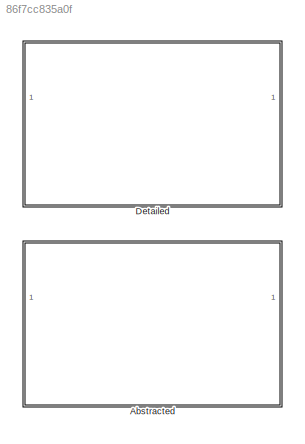
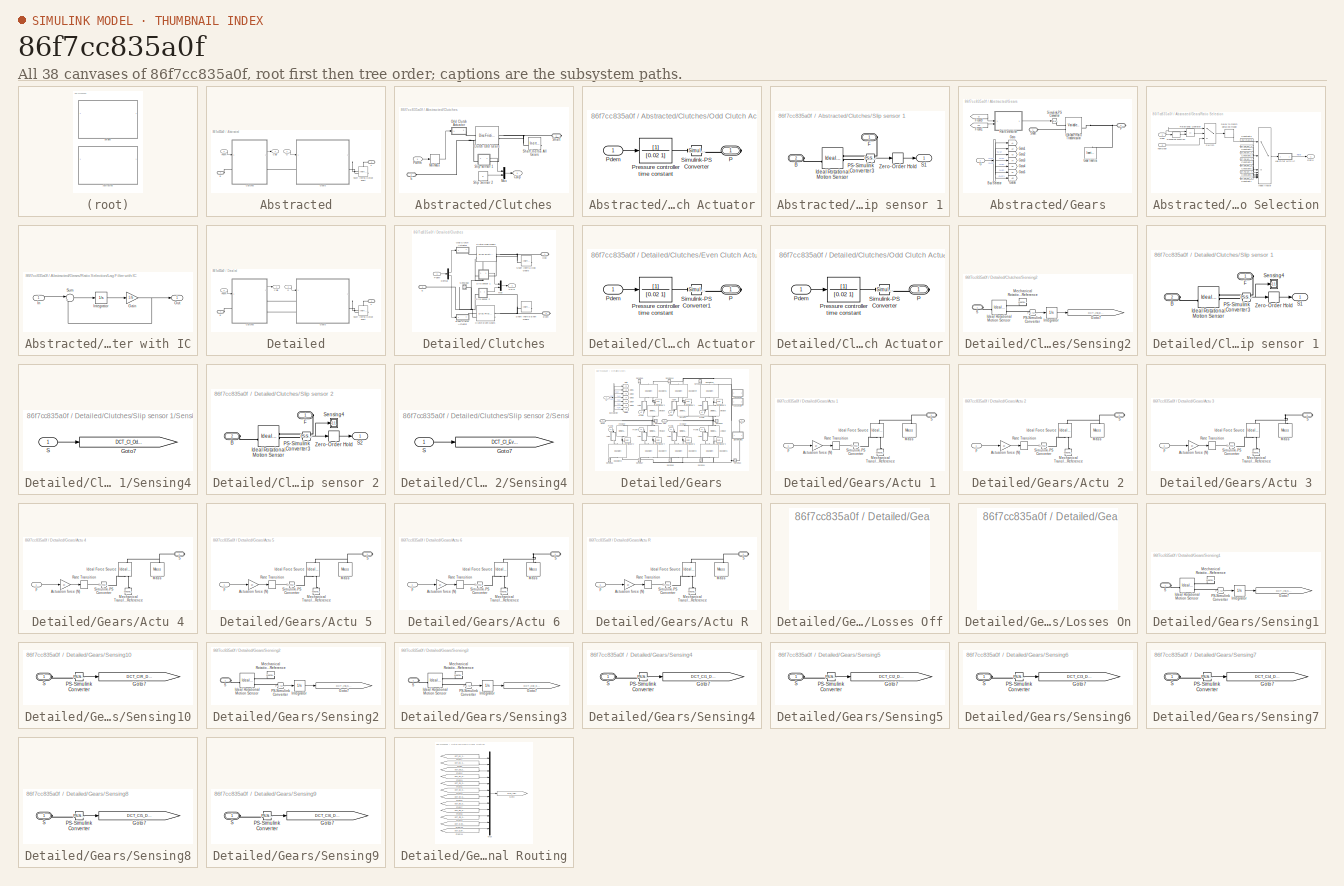
[diagram: thumbnail index - all 38 canvases of the model, root first then tree order]
MODEL slx_86f7cc835a0f
KIND library
CONFIG EnableMultiTasking = on
CONFIG SolverName = ode45
BLOCK [SubSystem] Abstracted
BLOCK [PMIOPort] Abstracted/B
  Side = Left
BLOCK [SubSystem] Abstracted/Clutches
BLOCK [Reference] Abstracted/Clutches/Clutch Odd Gears  REF=sdl_lib/Clutches/Disc Friction Clutch
  SourceBlock = sdl_lib/Clutches/Disc Friction Clutch
  SourceType = Disc Friction Clutch
BLOCK [Outport] Abstracted/Clutches/Cslip
  NameLocation = top
  VectorParamsAs1DForOutWhenUnconnected = off
BLOCK [PMIOPort] Abstracted/Clutches/E
  Port = 2
  Side = Left
BLOCK [MinMax] Abstracted/Clutches/MinMax
  Function = max
BLOCK [Mux] Abstracted/Clutches/Mux
  DisplayOption = bar
  Inputs = 2
BLOCK [SubSystem] Abstracted/Clutches/Odd Clutch Actuator
  NameLocation = top
BLOCK [PMIOPort] Abstracted/Clutches/Odd Clutch Actuator/P
  Side = Right
BLOCK [Inport] Abstracted/Clutches/Odd Clutch Actuator/Pdem
BLOCK [TransferFcn] Abstracted/Clutches/Odd Clutch Actuator/Pressure controller time constant
  Denominator = [0.02 1]
BLOCK [Reference] Abstracted/Clutches/Odd Clutch Actuator/Simulink-PS Converter  REF=nesl_utility/Simulink-PS
Converter
  SourceBlock = nesl_utility/Simulink-PS\nConverter
  SourceType = Simulink-PS\nConverter
BLOCK [Inport] Abstracted/Clutches/Pdem
BLOCK [PMIOPort] Abstracted/Clutches/Shaft
  Side = Right
BLOCK [Reference] Abstracted/Clutches/Shaft Inertia All Gears  REF=fl_lib/Mechanical/Rotational Elements/Inertia
  SourceBlock = fl_lib/Mechanical/Rotational Elements/Inertia
  SourceType = Inertia
BLOCK [Constant] Abstracted/Clutches/Slip Sensor 2
  Value = 0
BLOCK [SubSystem] Abstracted/Clutches/Slip sensor 1
BLOCK [PMIOPort] Abstracted/Clutches/Slip sensor 1/B
  Port = 2
  Side = Left
BLOCK [PMIOPort] Abstracted/Clutches/Slip sensor 1/F
  Side = Right
BLOCK [Reference] Abstracted/Clutches/Slip sensor 1/Ideal Rotational Motion Sensor  REF=fl_lib/Mechanical/Mechanical Sensors/Ideal Rotational
Motion Sensor
  SourceBlock = fl_lib/Mechanical/Mechanical Sensors/Ideal Rotational\nMotion Sensor
  SourceType = Ideal Rotational\nMotion Sensor
BLOCK [Reference] Abstracted/Clutches/Slip sensor 1/PS-Simulink Converter3  REF=nesl_utility/PS-Simulink
Converter
  SourceBlock = nesl_utility/PS-Simulink\nConverter
  SourceType = PS-Simulink\nConverter
BLOCK [Outport] Abstracted/Clutches/Slip sensor 1/S1
  VectorParamsAs1DForOutWhenUnconnected = off
BLOCK [ZeroOrderHold] Abstracted/Clutches/Slip sensor 1/Zero-Order Hold
  SampleTime = 0.01
BLOCK [Outport] Abstracted/Cslip
  VectorParamsAs1DForOutWhenUnconnected = off
BLOCK [PMIOPort] Abstracted/F
  Port = 2
  Side = Right
BLOCK [Inport] Abstracted/G
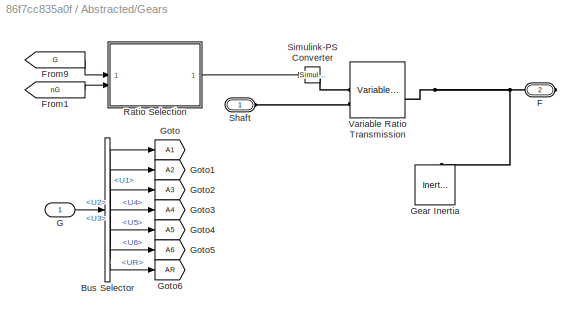
BLOCK [SubSystem] Abstracted/Gears
BLOCK [BusSelector] Abstracted/Gears/Bus Selector
  OutputSignals = U1,U2,U3,U4,U5,U6,UR
BLOCK [PMIOPort] Abstracted/Gears/F
  Port = 2
  Side = Right
BLOCK [From] Abstracted/Gears/From1
  GotoTag = nG
  TagVisibility = global
BLOCK [From] Abstracted/Gears/From9
  GotoTag = G
  TagVisibility = global
BLOCK [Inport] Abstracted/Gears/G
BLOCK [Reference] Abstracted/Gears/Gear Inertia  REF=fl_lib/Mechanical/Rotational Elements/Inertia
  NameLocation = left
  SourceBlock = fl_lib/Mechanical/Rotational Elements/Inertia
  SourceType = Inertia
BLOCK [Goto] Abstracted/Gears/Goto
  GotoTag = A1
BLOCK [Goto] Abstracted/Gears/Goto1
  GotoTag = A2
BLOCK [Goto] Abstracted/Gears/Goto2
  GotoTag = A3
BLOCK [Goto] Abstracted/Gears/Goto3
  GotoTag = A4
BLOCK [Goto] Abstracted/Gears/Goto4
  GotoTag = A5
BLOCK [Goto] Abstracted/Gears/Goto5
  GotoTag = A6
BLOCK [Goto] Abstracted/Gears/Goto6
  GotoTag = AR
BLOCK [SubSystem] Abstracted/Gears/Ratio Selection
BLOCK [Constant] Abstracted/Gears/Ratio Selection/Constant1
  Value = DCT_Param.Transmission.Ratios(1)
BLOCK [Constant] Abstracted/Gears/Ratio Selection/Constant2
  Value = DCT_Param.Transmission.Ratios(2)
BLOCK [Constant] Abstracted/Gears/Ratio Selection/Constant3
  Value = 1.05*(max(DCT_Param.Transmission.Ratios))
BLOCK [Constant] Abstracted/Gears/Ratio Selection/Constant4
  Value = DCT_Param.Transmission.Ratios(3)
BLOCK [Constant] Abstracted/Gears/Ratio Selection/Constant5
  Value = DCT_Param.Transmission.Ratios(4)
BLOCK [Constant] Abstracted/Gears/Ratio Selection/Constant6
  Value = DCT_Param.Transmission.Ratios(5)
BLOCK [Constant] Abstracted/Gears/Ratio Selection/Constant7
  Value = DCT_Param.Transmission.Ratios(6)
BLOCK [Delay] Abstracted/Gears/Ratio Selection/Delay to match detailed model
  DelayLength = DCT_Param.Transmission.Abstract.Shift_Gear_Delay
  InitialCondition = 1
  InputPortMap = u0
  SampleTime = 0.01
  UserDataPersistent = on
BLOCK [Inport] Abstracted/Gears/Ratio Selection/Gear
BLOCK [MultiPortSwitch] Abstracted/Gears/Ratio Selection/Index Vector
  DataPortOrder = Zero-based contiguous
  InputSameDT = off
  Inputs = 7
  SaturateOnIntegerOverflow = off
  zeroidx = on
BLOCK [SubSystem] Abstracted/Gears/Ratio Selection/Lag Filter with IC
BLOCK [Gain] Abstracted/Gears/Ratio Selection/Lag Filter with IC/Gain
  Gain = 1/b
BLOCK [Inport] Abstracted/Gears/Ratio Selection/Lag Filter with IC/In
BLOCK [Integrator] Abstracted/Gears/Ratio Selection/Lag Filter with IC/Integrator
  InitialCondition = x_initial*b
BLOCK [Outport] Abstracted/Gears/Ratio Selection/Lag Filter with IC/Out
  VectorParamsAs1DForOutWhenUnconnected = off
BLOCK [Sum] Abstracted/Gears/Ratio Selection/Lag Filter with IC/Sum
  InputSameDT = on
  Inputs = |+-
  OutDataTypeStr = Inherit: Same as first input
  SaturateOnIntegerOverflow = on
BLOCK [Outport] Abstracted/Gears/Ratio Selection/Ratio
  VectorParamsAs1DForOutWhenUnconnected = off
BLOCK [RelationalOperator] Abstracted/Gears/Ratio Selection/Relational Operator
  InputSameDT = off
  Operator = ==
  OutDataTypeStr = boolean
BLOCK [Rounding] Abstracted/Gears/Ratio Selection/Rounding Function
BLOCK [Switch] Abstracted/Gears/Ratio Selection/Switch
  Criteria = u2 > Threshold
  InputSameDT = off
  SaturateOnIntegerOverflow = off
BLOCK [Inport] Abstracted/Gears/Ratio Selection/nextGear
  Port = 2
BLOCK [PMIOPort] Abstracted/Gears/Shaft
  Side = Left
BLOCK [Reference] Abstracted/Gears/Simulink-PS Converter  REF=nesl_utility/Simulink-PS
Converter
  SourceBlock = nesl_utility/Simulink-PS\nConverter
  SourceType = Simulink-PS\nConverter
BLOCK [Reference] Abstracted/Gears/Variable Ratio Transmission  REF=sdl_lib/Couplings & Drives/Variable Ratio
Transmission
  SourceBlock = sdl_lib/Couplings & Drives/Variable Ratio\nTransmission
  SourceType = Variable Ratio\nTransmission
BLOCK [Inport] Abstracted/Pdem
  Port = 2
BLOCK [Reference] Abstracted/Shaft Inertia Output Shaft  REF=fl_lib/Mechanical/Rotational Elements/Inertia
  SourceBlock = fl_lib/Mechanical/Rotational Elements/Inertia
  SourceType = Inertia
BLOCK [SubSystem] Detailed
BLOCK [PMIOPort] Detailed/B
  Side = Left
BLOCK [SubSystem] Detailed/Clutches
BLOCK [Reference] Detailed/Clutches/Clutch Even Gears  REF=sdl_lib/Clutches/Disc Friction Clutch
  SourceBlock = sdl_lib/Clutches/Disc Friction Clutch
  SourceType = Disc Friction Clutch
  Tag = CustomStyle
BLOCK [Reference] Detailed/Clutches/Clutch Odd Gears  REF=sdl_lib/Clutches/Disc Friction Clutch
  SourceBlock = sdl_lib/Clutches/Disc Friction Clutch
  SourceType = Disc Friction Clutch
  Tag = CustomStyle
BLOCK [Outport] Detailed/Clutches/Cslip
  NameLocation = top
  VectorParamsAs1DForOutWhenUnconnected = off
BLOCK [Demux] Detailed/Clutches/Demux
  Outputs = 2
BLOCK [PMIOPort] Detailed/Clutches/E
  Port = 2
  Side = Left
BLOCK [PMIOPort] Detailed/Clutches/Even
  NameLocation = top
  Port = 3
  Side = Right
BLOCK [SubSystem] Detailed/Clutches/Even Clutch Actuator
BLOCK [PMIOPort] Detailed/Clutches/Even Clutch Actuator/P
  Side = Right
BLOCK [Inport] Detailed/Clutches/Even Clutch Actuator/Pdem
BLOCK [TransferFcn] Detailed/Clutches/Even Clutch Actuator/Pressure controller time constant
  Denominator = [0.02 1]
BLOCK [Reference] Detailed/Clutches/Even Clutch Actuator/Simulink-PS Converter1  REF=nesl_utility/Simulink-PS
Converter
  SourceBlock = nesl_utility/Simulink-PS\nConverter
  SourceType = Simulink-PS\nConverter
BLOCK [Mux] Detailed/Clutches/Mux
  DisplayOption = bar
  Inputs = 2
BLOCK [PMIOPort] Detailed/Clutches/Odd
  Side = Right
BLOCK [SubSystem] Detailed/Clutches/Odd Clutch Actuator
  NameLocation = top
BLOCK [PMIOPort] Detailed/Clutches/Odd Clutch Actuator/P
  Side = Right
BLOCK [Inport] Detailed/Clutches/Odd Clutch Actuator/Pdem
BLOCK [TransferFcn] Detailed/Clutches/Odd Clutch Actuator/Pressure controller time constant
  Denominator = [0.02 1]
BLOCK [Reference] Detailed/Clutches/Odd Clutch Actuator/Simulink-PS Converter  REF=nesl_utility/Simulink-PS
Converter
  SourceBlock = nesl_utility/Simulink-PS\nConverter
  SourceType = Simulink-PS\nConverter
BLOCK [Inport] Detailed/Clutches/Pdem
BLOCK [SubSystem] Detailed/Clutches/Sensing2
BLOCK [Goto] Detailed/Clutches/Sensing2/Goto7
  GotoTag = DCT_Inp_Engine_Sh_Ang
  TagVisibility = global
BLOCK [Reference] Detailed/Clutches/Sensing2/Ideal Rotational Motion Sensor  REF=fl_lib/Mechanical/Mechanical Sensors/Ideal Rotational
Motion Sensor
  SourceBlock = fl_lib/Mechanical/Mechanical Sensors/Ideal Rotational\nMotion Sensor
  SourceType = Ideal Rotational\nMotion Sensor
BLOCK [Integrator] Detailed/Clutches/Sensing2/Integrator
BLOCK [Reference] Detailed/Clutches/Sensing2/Mechanical Rotational Reference  REF=fl_lib/Mechanical/Rotational Elements/Mechanical
Rotational Reference
  NameLocation = top
  SourceBlock = fl_lib/Mechanical/Rotational Elements/Mechanical\nRotational Reference
  SourceType = Mechanical\nRotational Reference
BLOCK [Reference] Detailed/Clutches/Sensing2/PS-Simulink Converter  REF=nesl_utility/PS-Simulink
Converter
  SourceBlock = nesl_utility/PS-Simulink\nConverter
  SourceType = PS-Simulink\nConverter
BLOCK [PMIOPort] Detailed/Clutches/Sensing2/S
  Side = Left
BLOCK [Reference] Detailed/Clutches/Shaft Inertia Even Gears  REF=fl_lib/Mechanical/Rotational Elements/Inertia
  NameLocation = top
  SourceBlock = fl_lib/Mechanical/Rotational Elements/Inertia
  SourceType = Inertia
BLOCK [Reference] Detailed/Clutches/Shaft Inertia Odd Gears  REF=fl_lib/Mechanical/Rotational Elements/Inertia
  SourceBlock = fl_lib/Mechanical/Rotational Elements/Inertia
  SourceType = Inertia
BLOCK [SubSystem] Detailed/Clutches/Slip sensor 1
BLOCK [PMIOPort] Detailed/Clutches/Slip sensor 1/B
  Port = 2
  Side = Left
BLOCK [PMIOPort] Detailed/Clutches/Slip sensor 1/F
  Side = Right
BLOCK [Reference] Detailed/Clutches/Slip sensor 1/Ideal Rotational Motion Sensor  REF=fl_lib/Mechanical/Mechanical Sensors/Ideal Rotational
Motion Sensor
  SourceBlock = fl_lib/Mechanical/Mechanical Sensors/Ideal Rotational\nMotion Sensor
  SourceType = Ideal Rotational\nMotion Sensor
BLOCK [Reference] Detailed/Clutches/Slip sensor 1/PS-Simulink Converter3  REF=nesl_utility/PS-Simulink
Converter
  SourceBlock = nesl_utility/PS-Simulink\nConverter
  SourceType = PS-Simulink\nConverter
BLOCK [Outport] Detailed/Clutches/Slip sensor 1/S1
  VectorParamsAs1DForOutWhenUnconnected = off
BLOCK [SubSystem] Detailed/Clutches/Slip sensor 1/Sensing4
BLOCK [Goto] Detailed/Clutches/Slip sensor 1/Sensing4/Goto7
  GotoTag = DCT_Cl_Odd_Slip
  TagVisibility = global
BLOCK [Inport] Detailed/Clutches/Slip sensor 1/Sensing4/S
BLOCK [ZeroOrderHold] Detailed/Clutches/Slip sensor 1/Zero-Order Hold
  SampleTime = 0.01
BLOCK [SubSystem] Detailed/Clutches/Slip sensor 2
BLOCK [PMIOPort] Detailed/Clutches/Slip sensor 2/B
  Port = 2
  Side = Left
BLOCK [PMIOPort] Detailed/Clutches/Slip sensor 2/F
  Side = Right
BLOCK [Reference] Detailed/Clutches/Slip sensor 2/Ideal Rotational Motion Sensor  REF=fl_lib/Mechanical/Mechanical Sensors/Ideal Rotational
Motion Sensor
  SourceBlock = fl_lib/Mechanical/Mechanical Sensors/Ideal Rotational\nMotion Sensor
  SourceType = Ideal Rotational\nMotion Sensor
BLOCK [Reference] Detailed/Clutches/Slip sensor 2/PS-Simulink Converter3  REF=nesl_utility/PS-Simulink
Converter
  SourceBlock = nesl_utility/PS-Simulink\nConverter
  SourceType = PS-Simulink\nConverter
BLOCK [Outport] Detailed/Clutches/Slip sensor 2/S2
  VectorParamsAs1DForOutWhenUnconnected = off
BLOCK [SubSystem] Detailed/Clutches/Slip sensor 2/Sensing4
BLOCK [Goto] Detailed/Clutches/Slip sensor 2/Sensing4/Goto7
  GotoTag = DCT_Cl_Even_Slip
  TagVisibility = global
BLOCK [Inport] Detailed/Clutches/Slip sensor 2/Sensing4/S
BLOCK [ZeroOrderHold] Detailed/Clutches/Slip sensor 2/Zero-Order Hold
  SampleTime = 0.01
BLOCK [Outport] Detailed/Cslip
  VectorParamsAs1DForOutWhenUnconnected = off
BLOCK [PMIOPort] Detailed/F
  Port = 2
  Side = Right
BLOCK [Inport] Detailed/G
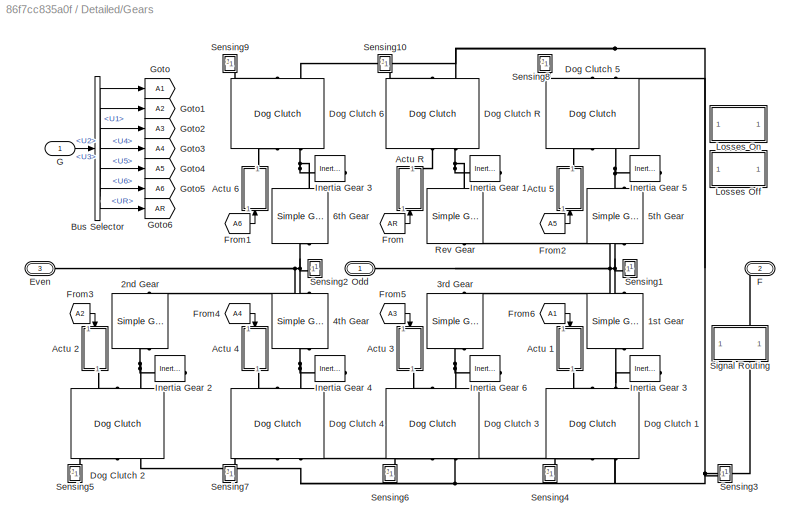
BLOCK [SubSystem] Detailed/Gears
BLOCK [Reference] Detailed/Gears/1st Gear  REF=sdl_lib/Gears/Simple Gear
  NameLocation = right
  SourceBlock = sdl_lib/Gears/Simple Gear
  SourceType = Simple Gear
  Tag = CustomStyle
BLOCK [Reference] Detailed/Gears/2nd Gear  REF=sdl_lib/Gears/Simple Gear
  NameLocation = right
  SourceBlock = sdl_lib/Gears/Simple Gear
  SourceType = Simple Gear
  Tag = CustomStyle
BLOCK [Reference] Detailed/Gears/3rd Gear  REF=sdl_lib/Gears/Simple Gear
  NameLocation = right
  SourceBlock = sdl_lib/Gears/Simple Gear
  SourceType = Simple Gear
  Tag = CustomStyle
BLOCK [Reference] Detailed/Gears/4th Gear  REF=sdl_lib/Gears/Simple Gear
  NameLocation = right
  SourceBlock = sdl_lib/Gears/Simple Gear
  SourceType = Simple Gear
  Tag = CustomStyle
BLOCK [Reference] Detailed/Gears/5th Gear  REF=sdl_lib/Gears/Simple Gear
  NameLocation = right
  SourceBlock = sdl_lib/Gears/Simple Gear
  SourceType = Simple Gear
  Tag = CustomStyle
BLOCK [Reference] Detailed/Gears/6th Gear  REF=sdl_lib/Gears/Simple Gear
  NameLocation = right
  SourceBlock = sdl_lib/Gears/Simple Gear
  SourceType = Simple Gear
  Tag = CustomStyle
BLOCK [SubSystem] Detailed/Gears/Actu 1
  NameLocation = left
BLOCK [Gain] Detailed/Gears/Actu 1/Actuation force (N)
  Gain = 10
  OutDataTypeStr = Inherit: Same as input
  ParamDataTypeStr = Inherit: Same as input
  SaturateOnIntegerOverflow = on
BLOCK [Reference] Detailed/Gears/Actu 1/Ideal Force Source  REF=fl_lib/Mechanical/Mechanical Sources/Ideal Force Source
  NameLocation = right
  SourceBlock = fl_lib/Mechanical/Mechanical Sources/Ideal Force Source
  SourceType = Ideal Force Source
BLOCK [Reference] Detailed/Gears/Actu 1/Mass  REF=fl_lib/Mechanical/Translational
Elements/Mass
  NameLocation = right
  SourceBlock = fl_lib/Mechanical/Translational\nElements/Mass
  SourceType = Mass
BLOCK [Reference] Detailed/Gears/Actu 1/Mechanical Translational Reference  REF=fl_lib/Mechanical/Translational
Elements/Mechanical
Translational
Reference
  NameLocation = right
  SourceBlock = fl_lib/Mechanical/Translational\nElements/Mechanical\nTranslational\nReference
  SourceType = Mechanical\nTranslational\nReference
BLOCK [RateTransition] Detailed/Gears/Actu 1/Rate Transition
BLOCK [PMIOPort] Detailed/Gears/Actu 1/S
  Side = Right
BLOCK [Reference] Detailed/Gears/Actu 1/Simulink-PS Converter  REF=nesl_utility/Simulink-PS
Converter
  SourceBlock = nesl_utility/Simulink-PS\nConverter
  SourceType = Simulink-PS\nConverter
BLOCK [Inport] Detailed/Gears/Actu 1/p
BLOCK [SubSystem] Detailed/Gears/Actu 2
  NameLocation = left
BLOCK [Gain] Detailed/Gears/Actu 2/Actuation force (N)
  Gain = 10
  OutDataTypeStr = Inherit: Same as input
  ParamDataTypeStr = Inherit: Same as input
  SaturateOnIntegerOverflow = on
BLOCK [Reference] Detailed/Gears/Actu 2/Ideal Force Source  REF=fl_lib/Mechanical/Mechanical Sources/Ideal Force Source
  NameLocation = right
  SourceBlock = fl_lib/Mechanical/Mechanical Sources/Ideal Force Source
  SourceType = Ideal Force Source
BLOCK [Reference] Detailed/Gears/Actu 2/Mass  REF=fl_lib/Mechanical/Translational
Elements/Mass
  NameLocation = right
  SourceBlock = fl_lib/Mechanical/Translational\nElements/Mass
  SourceType = Mass
BLOCK [Reference] Detailed/Gears/Actu 2/Mechanical Translational Reference  REF=fl_lib/Mechanical/Translational
Elements/Mechanical
Translational
Reference
  NameLocation = right
  SourceBlock = fl_lib/Mechanical/Translational\nElements/Mechanical\nTranslational\nReference
  SourceType = Mechanical\nTranslational\nReference
BLOCK [RateTransition] Detailed/Gears/Actu 2/Rate Transition
BLOCK [PMIOPort] Detailed/Gears/Actu 2/S
  Side = Right
BLOCK [Reference] Detailed/Gears/Actu 2/Simulink-PS Converter  REF=nesl_utility/Simulink-PS
Converter
  SourceBlock = nesl_utility/Simulink-PS\nConverter
  SourceType = Simulink-PS\nConverter
BLOCK [Inport] Detailed/Gears/Actu 2/p
BLOCK [SubSystem] Detailed/Gears/Actu 3
  NameLocation = left
BLOCK [Gain] Detailed/Gears/Actu 3/Actuation force (N)
  Gain = 10
  OutDataTypeStr = Inherit: Same as input
  ParamDataTypeStr = Inherit: Same as input
  SaturateOnIntegerOverflow = on
BLOCK [Reference] Detailed/Gears/Actu 3/Ideal Force Source  REF=fl_lib/Mechanical/Mechanical Sources/Ideal Force Source
  NameLocation = right
  SourceBlock = fl_lib/Mechanical/Mechanical Sources/Ideal Force Source
  SourceType = Ideal Force Source
BLOCK [Reference] Detailed/Gears/Actu 3/Mass  REF=fl_lib/Mechanical/Translational
Elements/Mass
  NameLocation = right
  SourceBlock = fl_lib/Mechanical/Translational\nElements/Mass
  SourceType = Mass
BLOCK [Reference] Detailed/Gears/Actu 3/Mechanical Translational Reference  REF=fl_lib/Mechanical/Translational
Elements/Mechanical
Translational
Reference
  NameLocation = right
  SourceBlock = fl_lib/Mechanical/Translational\nElements/Mechanical\nTranslational\nReference
  SourceType = Mechanical\nTranslational\nReference
BLOCK [RateTransition] Detailed/Gears/Actu 3/Rate Transition
BLOCK [PMIOPort] Detailed/Gears/Actu 3/S
  Side = Right
BLOCK [Reference] Detailed/Gears/Actu 3/Simulink-PS Converter  REF=nesl_utility/Simulink-PS
Converter
  SourceBlock = nesl_utility/Simulink-PS\nConverter
  SourceType = Simulink-PS\nConverter
BLOCK [Inport] Detailed/Gears/Actu 3/p
BLOCK [SubSystem] Detailed/Gears/Actu 4
  NameLocation = left
BLOCK [Gain] Detailed/Gears/Actu 4/Actuation force (N)
  Gain = 10
  OutDataTypeStr = Inherit: Same as input
  ParamDataTypeStr = Inherit: Same as input
  SaturateOnIntegerOverflow = on
BLOCK [Reference] Detailed/Gears/Actu 4/Ideal Force Source  REF=fl_lib/Mechanical/Mechanical Sources/Ideal Force Source
  NameLocation = right
  SourceBlock = fl_lib/Mechanical/Mechanical Sources/Ideal Force Source
  SourceType = Ideal Force Source
BLOCK [Reference] Detailed/Gears/Actu 4/Mass  REF=fl_lib/Mechanical/Translational
Elements/Mass
  NameLocation = right
  SourceBlock = fl_lib/Mechanical/Translational\nElements/Mass
  SourceType = Mass
BLOCK [Reference] Detailed/Gears/Actu 4/Mechanical Translational Reference  REF=fl_lib/Mechanical/Translational
Elements/Mechanical
Translational
Reference
  NameLocation = right
  SourceBlock = fl_lib/Mechanical/Translational\nElements/Mechanical\nTranslational\nReference
  SourceType = Mechanical\nTranslational\nReference
BLOCK [RateTransition] Detailed/Gears/Actu 4/Rate Transition
BLOCK [PMIOPort] Detailed/Gears/Actu 4/S
  Side = Right
BLOCK [Reference] Detailed/Gears/Actu 4/Simulink-PS Converter  REF=nesl_utility/Simulink-PS
Converter
  SourceBlock = nesl_utility/Simulink-PS\nConverter
  SourceType = Simulink-PS\nConverter
BLOCK [Inport] Detailed/Gears/Actu 4/p
BLOCK [SubSystem] Detailed/Gears/Actu 5
  NameLocation = left
BLOCK [Gain] Detailed/Gears/Actu 5/Actuation force (N)
  Gain = 10
  OutDataTypeStr = Inherit: Same as input
  ParamDataTypeStr = Inherit: Same as input
  SaturateOnIntegerOverflow = on
BLOCK [Reference] Detailed/Gears/Actu 5/Ideal Force Source  REF=fl_lib/Mechanical/Mechanical Sources/Ideal Force Source
  NameLocation = right
  SourceBlock = fl_lib/Mechanical/Mechanical Sources/Ideal Force Source
  SourceType = Ideal Force Source
BLOCK [Reference] Detailed/Gears/Actu 5/Mass  REF=fl_lib/Mechanical/Translational
Elements/Mass
  NameLocation = right
  SourceBlock = fl_lib/Mechanical/Translational\nElements/Mass
  SourceType = Mass
BLOCK [Reference] Detailed/Gears/Actu 5/Mechanical Translational Reference  REF=fl_lib/Mechanical/Translational
Elements/Mechanical
Translational
Reference
  NameLocation = right
  SourceBlock = fl_lib/Mechanical/Translational\nElements/Mechanical\nTranslational\nReference
  SourceType = Mechanical\nTranslational\nReference
BLOCK [RateTransition] Detailed/Gears/Actu 5/Rate Transition
BLOCK [PMIOPort] Detailed/Gears/Actu 5/S
  Side = Right
BLOCK [Reference] Detailed/Gears/Actu 5/Simulink-PS Converter  REF=nesl_utility/Simulink-PS
Converter
  SourceBlock = nesl_utility/Simulink-PS\nConverter
  SourceType = Simulink-PS\nConverter
BLOCK [Inport] Detailed/Gears/Actu 5/p
BLOCK [SubSystem] Detailed/Gears/Actu 6
  NameLocation = left
BLOCK [Gain] Detailed/Gears/Actu 6/Actuation force (N)
  Gain = 10
  OutDataTypeStr = Inherit: Same as input
  ParamDataTypeStr = Inherit: Same as input
  SaturateOnIntegerOverflow = on
BLOCK [Reference] Detailed/Gears/Actu 6/Ideal Force Source  REF=fl_lib/Mechanical/Mechanical Sources/Ideal Force Source
  NameLocation = right
  SourceBlock = fl_lib/Mechanical/Mechanical Sources/Ideal Force Source
  SourceType = Ideal Force Source
BLOCK [Reference] Detailed/Gears/Actu 6/Mass  REF=fl_lib/Mechanical/Translational
Elements/Mass
  NameLocation = right
  SourceBlock = fl_lib/Mechanical/Translational\nElements/Mass
  SourceType = Mass
BLOCK [Reference] Detailed/Gears/Actu 6/Mechanical Translational Reference  REF=fl_lib/Mechanical/Translational
Elements/Mechanical
Translational
Reference
  NameLocation = right
  SourceBlock = fl_lib/Mechanical/Translational\nElements/Mechanical\nTranslational\nReference
  SourceType = Mechanical\nTranslational\nReference
BLOCK [RateTransition] Detailed/Gears/Actu 6/Rate Transition
BLOCK [PMIOPort] Detailed/Gears/Actu 6/S
  Side = Right
BLOCK [Reference] Detailed/Gears/Actu 6/Simulink-PS Converter  REF=nesl_utility/Simulink-PS
Converter
  SourceBlock = nesl_utility/Simulink-PS\nConverter
  SourceType = Simulink-PS\nConverter
BLOCK [Inport] Detailed/Gears/Actu 6/p
BLOCK [SubSystem] Detailed/Gears/Actu R
  NameLocation = left
BLOCK [Gain] Detailed/Gears/Actu R/Actuation force (N)
  Gain = 10
  OutDataTypeStr = Inherit: Same as input
  ParamDataTypeStr = Inherit: Same as input
  SaturateOnIntegerOverflow = on
BLOCK [Reference] Detailed/Gears/Actu R/Ideal Force Source  REF=fl_lib/Mechanical/Mechanical Sources/Ideal Force Source
  NameLocation = right
  SourceBlock = fl_lib/Mechanical/Mechanical Sources/Ideal Force Source
  SourceType = Ideal Force Source
BLOCK [Reference] Detailed/Gears/Actu R/Mass  REF=fl_lib/Mechanical/Translational
Elements/Mass
  NameLocation = right
  SourceBlock = fl_lib/Mechanical/Translational\nElements/Mass
  SourceType = Mass
BLOCK [Reference] Detailed/Gears/Actu R/Mechanical Translational Reference  REF=fl_lib/Mechanical/Translational
Elements/Mechanical
Translational
Reference
  NameLocation = right
  SourceBlock = fl_lib/Mechanical/Translational\nElements/Mechanical\nTranslational\nReference
  SourceType = Mechanical\nTranslational\nReference
BLOCK [RateTransition] Detailed/Gears/Actu R/Rate Transition
BLOCK [PMIOPort] Detailed/Gears/Actu R/S
  Side = Right
BLOCK [Reference] Detailed/Gears/Actu R/Simulink-PS Converter  REF=nesl_utility/Simulink-PS
Converter
  SourceBlock = nesl_utility/Simulink-PS\nConverter
  SourceType = Simulink-PS\nConverter
BLOCK [Inport] Detailed/Gears/Actu R/p
BLOCK [BusSelector] Detailed/Gears/Bus Selector
  OutputSignals = U1,U2,U3,U4,U5,U6,UR
BLOCK [Reference] Detailed/Gears/Dog Clutch 1  REF=sdl_lib/Clutches/Dog Clutch
  NameLocation = right
  SourceBlock = sdl_lib/Clutches/Dog Clutch
  SourceType = Dog Clutch
  Tag = CustomStyle
BLOCK [Reference] Detailed/Gears/Dog Clutch 2  REF=sdl_lib/Clutches/Dog Clutch
  NameLocation = right
  SourceBlock = sdl_lib/Clutches/Dog Clutch
  SourceType = Dog Clutch
  Tag = CustomStyle
BLOCK [Reference] Detailed/Gears/Dog Clutch 3  REF=sdl_lib/Clutches/Dog Clutch
  NameLocation = right
  SourceBlock = sdl_lib/Clutches/Dog Clutch
  SourceType = Dog Clutch
  Tag = CustomStyle
BLOCK [Reference] Detailed/Gears/Dog Clutch 4  REF=sdl_lib/Clutches/Dog Clutch
  NameLocation = right
  SourceBlock = sdl_lib/Clutches/Dog Clutch
  SourceType = Dog Clutch
  Tag = CustomStyle
BLOCK [Reference] Detailed/Gears/Dog Clutch 5  REF=sdl_lib/Clutches/Dog Clutch
  NameLocation = right
  SourceBlock = sdl_lib/Clutches/Dog Clutch
  SourceType = Dog Clutch
  Tag = CustomStyle
BLOCK [Reference] Detailed/Gears/Dog Clutch 6  REF=sdl_lib/Clutches/Dog Clutch
  NameLocation = right
  SourceBlock = sdl_lib/Clutches/Dog Clutch
  SourceType = Dog Clutch
  Tag = CustomStyle
BLOCK [Reference] Detailed/Gears/Dog Clutch R  REF=sdl_lib/Clutches/Dog Clutch
  NameLocation = right
  SourceBlock = sdl_lib/Clutches/Dog Clutch
  SourceType = Dog Clutch
  Tag = CustomStyle
BLOCK [PMIOPort] Detailed/Gears/Even
  Port = 3
  Side = Left
BLOCK [PMIOPort] Detailed/Gears/F
  Port = 2
  Side = Right
BLOCK [From] Detailed/Gears/From
  GotoTag = AR
BLOCK [From] Detailed/Gears/From1
  GotoTag = A6
BLOCK [From] Detailed/Gears/From2
  GotoTag = A5
BLOCK [From] Detailed/Gears/From3
  GotoTag = A2
BLOCK [From] Detailed/Gears/From4
  GotoTag = A4
BLOCK [From] Detailed/Gears/From5
  GotoTag = A3
BLOCK [From] Detailed/Gears/From6
  GotoTag = A1
BLOCK [Inport] Detailed/Gears/G
BLOCK [Goto] Detailed/Gears/Goto
  GotoTag = A1
BLOCK [Goto] Detailed/Gears/Goto1
  GotoTag = A2
BLOCK [Goto] Detailed/Gears/Goto2
  GotoTag = A3
BLOCK [Goto] Detailed/Gears/Goto3
  GotoTag = A4
BLOCK [Goto] Detailed/Gears/Goto4
  GotoTag = A5
BLOCK [Goto] Detailed/Gears/Goto5
  GotoTag = A6
BLOCK [Goto] Detailed/Gears/Goto6
  GotoTag = AR
BLOCK [Reference] Detailed/Gears/Inertia Gear 1  REF=fl_lib/Mechanical/Rotational Elements/Inertia
  SourceBlock = fl_lib/Mechanical/Rotational Elements/Inertia
  SourceType = Inertia
BLOCK [Reference] Detailed/Gears/Inertia Gear 2  REF=fl_lib/Mechanical/Rotational Elements/Inertia
  SourceBlock = fl_lib/Mechanical/Rotational Elements/Inertia
  SourceType = Inertia
BLOCK [Reference] Detailed/Gears/Inertia Gear 3  REF=fl_lib/Mechanical/Rotational Elements/Inertia
  SourceBlock = fl_lib/Mechanical/Rotational Elements/Inertia
  SourceType = Inertia
BLOCK [Reference] Detailed/Gears/Inertia Gear 3   REF=fl_lib/Mechanical/Rotational Elements/Inertia
  SourceBlock = fl_lib/Mechanical/Rotational Elements/Inertia
  SourceType = Inertia
BLOCK [Reference] Detailed/Gears/Inertia Gear 4  REF=fl_lib/Mechanical/Rotational Elements/Inertia
  SourceBlock = fl_lib/Mechanical/Rotational Elements/Inertia
  SourceType = Inertia
BLOCK [Reference] Detailed/Gears/Inertia Gear 5  REF=fl_lib/Mechanical/Rotational Elements/Inertia
  SourceBlock = fl_lib/Mechanical/Rotational Elements/Inertia
  SourceType = Inertia
BLOCK [Reference] Detailed/Gears/Inertia Gear 6  REF=fl_lib/Mechanical/Rotational Elements/Inertia
  SourceBlock = fl_lib/Mechanical/Rotational Elements/Inertia
  SourceType = Inertia
BLOCK [SubSystem] Detailed/Gears/Losses Off
  OpenFcn = gearblk_h = find_system(gcs,'MatchFilter',@Simulink.match.allVariants,'ClassName','simple_gear');\nfor i = 1:length(gearblk_h)                            \nset_param(gearblk_h{i},'friction_model','1'); end
BLOCK [SubSystem] Detailed/Gears/Losses On
  OpenFcn = gearblk_h = find_system(gcs,'MatchFilter',@Simulink.match.allVariants,'ClassName','simple_gear');\nfor i = 1:length(gearblk_h)                            \nset_param(gearblk_h{i},'friction_model','2'); end;
BLOCK [PMIOPort] Detailed/Gears/Odd
  Side = Left
BLOCK [Reference] Detailed/Gears/Rev Gear  REF=sdl_lib/Gears/Simple Gear
  NameLocation = right
  SourceBlock = sdl_lib/Gears/Simple Gear
  SourceType = Simple Gear
  Tag = CustomStyle
BLOCK [SubSystem] Detailed/Gears/Sensing1
BLOCK [Goto] Detailed/Gears/Sensing1/Goto7
  GotoTag = DCT_Inp_Sh_Odd_Ang
  TagVisibility = global
BLOCK [Reference] Detailed/Gears/Sensing1/Ideal Rotational Motion Sensor  REF=fl_lib/Mechanical/Mechanical Sensors/Ideal Rotational
Motion Sensor
  SourceBlock = fl_lib/Mechanical/Mechanical Sensors/Ideal Rotational\nMotion Sensor
  SourceType = Ideal Rotational\nMotion Sensor
BLOCK [Integrator] Detailed/Gears/Sensing1/Integrator
BLOCK [Reference] Detailed/Gears/Sensing1/Mechanical Rotational Reference  REF=fl_lib/Mechanical/Rotational Elements/Mechanical
Rotational Reference
  NameLocation = top
  SourceBlock = fl_lib/Mechanical/Rotational Elements/Mechanical\nRotational Reference
  SourceType = Mechanical\nRotational Reference
BLOCK [Reference] Detailed/Gears/Sensing1/PS-Simulink Converter  REF=nesl_utility/PS-Simulink
Converter
  SourceBlock = nesl_utility/PS-Simulink\nConverter
  SourceType = PS-Simulink\nConverter
BLOCK [PMIOPort] Detailed/Gears/Sensing1/S
  Side = Left
BLOCK [SubSystem] Detailed/Gears/Sensing10
  NameLocation = top
BLOCK [Goto] Detailed/Gears/Sensing10/Goto7
  GotoTag = DCT_ClR_Disp
  TagVisibility = global
BLOCK [Reference] Detailed/Gears/Sensing10/PS-Simulink Converter  REF=nesl_utility/PS-Simulink
Converter
  SourceBlock = nesl_utility/PS-Simulink\nConverter
  SourceType = PS-Simulink\nConverter
BLOCK [PMIOPort] Detailed/Gears/Sensing10/S
  Side = Left
BLOCK [SubSystem] Detailed/Gears/Sensing2
BLOCK [Goto] Detailed/Gears/Sensing2/Goto7
  GotoTag = DCT_Inp_Sh_Even_Ang
  TagVisibility = global
BLOCK [Reference] Detailed/Gears/Sensing2/Ideal Rotational Motion Sensor  REF=fl_lib/Mechanical/Mechanical Sensors/Ideal Rotational
Motion Sensor
  SourceBlock = fl_lib/Mechanical/Mechanical Sensors/Ideal Rotational\nMotion Sensor
  SourceType = Ideal Rotational\nMotion Sensor
BLOCK [Integrator] Detailed/Gears/Sensing2/Integrator
BLOCK [Reference] Detailed/Gears/Sensing2/Mechanical Rotational Reference  REF=fl_lib/Mechanical/Rotational Elements/Mechanical
Rotational Reference
  NameLocation = top
  SourceBlock = fl_lib/Mechanical/Rotational Elements/Mechanical\nRotational Reference
  SourceType = Mechanical\nRotational Reference
BLOCK [Reference] Detailed/Gears/Sensing2/PS-Simulink Converter  REF=nesl_utility/PS-Simulink
Converter
  SourceBlock = nesl_utility/PS-Simulink\nConverter
  SourceType = PS-Simulink\nConverter
BLOCK [PMIOPort] Detailed/Gears/Sensing2/S
  Side = Left
BLOCK [SubSystem] Detailed/Gears/Sensing3
BLOCK [Goto] Detailed/Gears/Sensing3/Goto7
  GotoTag = DCT_Out_Sh_Even_Ang
  TagVisibility = global
BLOCK [Reference] Detailed/Gears/Sensing3/Ideal Rotational Motion Sensor  REF=fl_lib/Mechanical/Mechanical Sensors/Ideal Rotational
Motion Sensor
  SourceBlock = fl_lib/Mechanical/Mechanical Sensors/Ideal Rotational\nMotion Sensor
  SourceType = Ideal Rotational\nMotion Sensor
BLOCK [Integrator] Detailed/Gears/Sensing3/Integrator
BLOCK [Reference] Detailed/Gears/Sensing3/Mechanical Rotational Reference  REF=fl_lib/Mechanical/Rotational Elements/Mechanical
Rotational Reference
  NameLocation = top
  SourceBlock = fl_lib/Mechanical/Rotational Elements/Mechanical\nRotational Reference
  SourceType = Mechanical\nRotational Reference
BLOCK [Reference] Detailed/Gears/Sensing3/PS-Simulink Converter  REF=nesl_utility/PS-Simulink
Converter
  SourceBlock = nesl_utility/PS-Simulink\nConverter
  SourceType = PS-Simulink\nConverter
BLOCK [PMIOPort] Detailed/Gears/Sensing3/S
  Side = Left
BLOCK [SubSystem] Detailed/Gears/Sensing4
  NameLocation = top
BLOCK [Goto] Detailed/Gears/Sensing4/Goto7
  GotoTag = DCT_Cl1_Disp
  TagVisibility = global
BLOCK [Reference] Detailed/Gears/Sensing4/PS-Simulink Converter  REF=nesl_utility/PS-Simulink
Converter
  SourceBlock = nesl_utility/PS-Simulink\nConverter
  SourceType = PS-Simulink\nConverter
BLOCK [PMIOPort] Detailed/Gears/Sensing4/S
  Side = Left
BLOCK [SubSystem] Detailed/Gears/Sensing5
  NameLocation = top
BLOCK [Goto] Detailed/Gears/Sensing5/Goto7
  GotoTag = DCT_Cl2_Disp
  TagVisibility = global
BLOCK [Reference] Detailed/Gears/Sensing5/PS-Simulink Converter  REF=nesl_utility/PS-Simulink
Converter
  SourceBlock = nesl_utility/PS-Simulink\nConverter
  SourceType = PS-Simulink\nConverter
BLOCK [PMIOPort] Detailed/Gears/Sensing5/S
  Side = Left
BLOCK [SubSystem] Detailed/Gears/Sensing6
  NameLocation = top
BLOCK [Goto] Detailed/Gears/Sensing6/Goto7
  GotoTag = DCT_Cl3_Disp
  TagVisibility = global
BLOCK [Reference] Detailed/Gears/Sensing6/PS-Simulink Converter  REF=nesl_utility/PS-Simulink
Converter
  SourceBlock = nesl_utility/PS-Simulink\nConverter
  SourceType = PS-Simulink\nConverter
BLOCK [PMIOPort] Detailed/Gears/Sensing6/S
  Side = Left
BLOCK [SubSystem] Detailed/Gears/Sensing7
  NameLocation = top
BLOCK [Goto] Detailed/Gears/Sensing7/Goto7
  GotoTag = DCT_Cl4_Disp
  TagVisibility = global
BLOCK [Reference] Detailed/Gears/Sensing7/PS-Simulink Converter  REF=nesl_utility/PS-Simulink
Converter
  SourceBlock = nesl_utility/PS-Simulink\nConverter
  SourceType = PS-Simulink\nConverter
BLOCK [PMIOPort] Detailed/Gears/Sensing7/S
  Side = Left
BLOCK [SubSystem] Detailed/Gears/Sensing8
  NameLocation = top
BLOCK [Goto] Detailed/Gears/Sensing8/Goto7
  GotoTag = DCT_Cl5_Disp
  TagVisibility = global
BLOCK [Reference] Detailed/Gears/Sensing8/PS-Simulink Converter  REF=nesl_utility/PS-Simulink
Converter
  SourceBlock = nesl_utility/PS-Simulink\nConverter
  SourceType = PS-Simulink\nConverter
BLOCK [PMIOPort] Detailed/Gears/Sensing8/S
  Side = Left
BLOCK [SubSystem] Detailed/Gears/Sensing9
  NameLocation = top
BLOCK [Goto] Detailed/Gears/Sensing9/Goto7
  GotoTag = DCT_Cl6_Disp
  TagVisibility = global
BLOCK [Reference] Detailed/Gears/Sensing9/PS-Simulink Converter  REF=nesl_utility/PS-Simulink
Converter
  SourceBlock = nesl_utility/PS-Simulink\nConverter
  SourceType = PS-Simulink\nConverter
BLOCK [PMIOPort] Detailed/Gears/Sensing9/S
  Side = Left
BLOCK [SubSystem] Detailed/Gears/Signal Routing
BLOCK [From] Detailed/Gears/Signal Routing/From
  GotoTag = DCT_Inp_Sh_Even_Ang
  TagVisibility = global
BLOCK [From] Detailed/Gears/Signal Routing/From1
  GotoTag = DCT_Inp_Sh_Odd_Ang
  TagVisibility = global
BLOCK [From] Detailed/Gears/Signal Routing/From10
  GotoTag = DCT_Cl_Odd_Slip
  TagVisibility = global
BLOCK [From] Detailed/Gears/Signal Routing/From11
  GotoTag = DCT_Cl_Even_Slip
  TagVisibility = global
BLOCK [From] Detailed/Gears/Signal Routing/From2
  GotoTag = DCT_Out_Sh_Even_Ang
  TagVisibility = global
BLOCK [From] Detailed/Gears/Signal Routing/From3
  GotoTag = DCT_Cl1_Disp
  TagVisibility = global
BLOCK [From] Detailed/Gears/Signal Routing/From4
  GotoTag = DCT_Cl2_Disp
  TagVisibility = global
BLOCK [From] Detailed/Gears/Signal Routing/From5
  GotoTag = DCT_Cl3_Disp
  TagVisibility = global
BLOCK [From] Detailed/Gears/Signal Routing/From6
  GotoTag = DCT_Cl4_Disp
  TagVisibility = global
BLOCK [From] Detailed/Gears/Signal Routing/From7
  GotoTag = DCT_Cl5_Disp
  TagVisibility = global
BLOCK [From] Detailed/Gears/Signal Routing/From8
  GotoTag = DCT_Cl6_Disp
  TagVisibility = global
BLOCK [From] Detailed/Gears/Signal Routing/From9
  GotoTag = DCT_ClR_Disp
  TagVisibility = global
BLOCK [Goto] Detailed/Gears/Signal Routing/Goto
  GotoTag = SL3D_Anim_Data
  TagVisibility = global
BLOCK [Mux] Detailed/Gears/Signal Routing/Mux
  DisplayOption = bar
  Inputs = 12
BLOCK [Inport] Detailed/Pdem
  Port = 2
BLOCK [Reference] Detailed/Shaft Inertia Output Shaft  REF=fl_lib/Mechanical/Rotational Elements/Inertia
  SourceBlock = fl_lib/Mechanical/Rotational Elements/Inertia
  SourceType = Inertia
LINE Abstracted/Clutches/MinMax:1 -> Abstracted/Clutches/Odd Clutch Actuator:1
LINE Abstracted/Clutches/Mux:1 -> Abstracted/Clutches/Cslip:1
LINE Abstracted/Clutches/Odd Clutch Actuator/Pdem:1 -> Abstracted/Clutches/Odd Clutch Actuator/Pressure controller time constant:1
LINE Abstracted/Clutches/Odd Clutch Actuator/Pressure controller time constant:1 -> Abstracted/Clutches/Odd Clutch Actuator/Simulink-PS Converter:1
LINE Abstracted/Clutches/Pdem:1 -> Abstracted/Clutches/MinMax:1
LINE Abstracted/Clutches/Slip Sensor 2:1 -> Abstracted/Clutches/Mux:2
LINE Abstracted/Clutches/Slip sensor 1/PS-Simulink Converter3:1 -> Abstracted/Clutches/Slip sensor 1/Zero-Order Hold:1
LINE Abstracted/Clutches/Slip sensor 1/Zero-Order Hold:1 -> Abstracted/Clutches/Slip sensor 1/S1:1
LINE Abstracted/Clutches/Slip sensor 1:1 -> Abstracted/Clutches/Mux:1
LINE Abstracted/Clutches:1 -> Abstracted/Cslip:1
LINE Abstracted/G:1 -> Abstracted/Gears:1
LINE Abstracted/Gears/Bus Selector:1 -> Abstracted/Gears/Goto:1
LINE Abstracted/Gears/Bus Selector:2 -> Abstracted/Gears/Goto1:1
LINE Abstracted/Gears/Bus Selector:3 -> Abstracted/Gears/Goto2:1
LINE Abstracted/Gears/Bus Selector:4 -> Abstracted/Gears/Goto3:1
LINE Abstracted/Gears/Bus Selector:5 -> Abstracted/Gears/Goto4:1
LINE Abstracted/Gears/Bus Selector:6 -> Abstracted/Gears/Goto5:1
LINE Abstracted/Gears/Bus Selector:7 -> Abstracted/Gears/Goto6:1
LINE Abstracted/Gears/From1:1 -> Abstracted/Gears/Ratio Selection:2
LINE Abstracted/Gears/From9:1 -> Abstracted/Gears/Ratio Selection:1
LINE Abstracted/Gears/G:1 -> Abstracted/Gears/Bus Selector:1
LINE Abstracted/Gears/Ratio Selection/Constant1:1 -> Abstracted/Gears/Ratio Selection/Index Vector:3
LINE Abstracted/Gears/Ratio Selection/Constant2:1 -> Abstracted/Gears/Ratio Selection/Index Vector:4
LINE Abstracted/Gears/Ratio Selection/Constant3:1 -> Abstracted/Gears/Ratio Selection/Index Vector:2
LINE Abstracted/Gears/Ratio Selection/Constant4:1 -> Abstracted/Gears/Ratio Selection/Index Vector:5
LINE Abstracted/Gears/Ratio Selection/Constant5:1 -> Abstracted/Gears/Ratio Selection/Index Vector:6
LINE Abstracted/Gears/Ratio Selection/Constant6:1 -> Abstracted/Gears/Ratio Selection/Index Vector:7
LINE Abstracted/Gears/Ratio Selection/Constant7:1 -> Abstracted/Gears/Ratio Selection/Index Vector:8
LINE Abstracted/Gears/Ratio Selection/Delay to match detailed model:1 -> Abstracted/Gears/Ratio Selection/Index Vector:1
NET Abstracted/Gears/Ratio Selection/Gear:1 -> Abstracted/Gears/Ratio Selection/Relational Operator:1, Abstracted/Gears/Ratio Selection/Rounding Function:1, Abstracted/Gears/Ratio Selection/Switch:1
LINE Abstracted/Gears/Ratio Selection/Index Vector:1 -> Abstracted/Gears/Ratio Selection/Lag Filter with IC:1
NET Abstracted/Gears/Ratio Selection/Lag Filter with IC/Gain:1 -> Abstracted/Gears/Ratio Selection/Lag Filter with IC/Out:1, Abstracted/Gears/Ratio Selection/Lag Filter with IC/Sum:2
LINE Abstracted/Gears/Ratio Selection/Lag Filter with IC/In:1 -> Abstracted/Gears/Ratio Selection/Lag Filter with IC/Sum:1
LINE Abstracted/Gears/Ratio Selection/Lag Filter with IC/Integrator:1 -> Abstracted/Gears/Ratio Selection/Lag Filter with IC/Gain:1
LINE Abstracted/Gears/Ratio Selection/Lag Filter with IC/Sum:1 -> Abstracted/Gears/Ratio Selection/Lag Filter with IC/Integrator:1
LINE Abstracted/Gears/Ratio Selection/Lag Filter with IC:1 -> Abstracted/Gears/Ratio Selection/Ratio:1
LINE Abstracted/Gears/Ratio Selection/Relational Operator:1 -> Abstracted/Gears/Ratio Selection/Switch:2
LINE Abstracted/Gears/Ratio Selection/Rounding Function:1 -> Abstracted/Gears/Ratio Selection/Relational Operator:2
LINE Abstracted/Gears/Ratio Selection/Switch:1 -> Abstracted/Gears/Ratio Selection/Delay to match detailed model:1
LINE Abstracted/Gears/Ratio Selection/nextGear:1 -> Abstracted/Gears/Ratio Selection/Switch:3
LINE Abstracted/Gears/Ratio Selection:1 -> Abstracted/Gears/Simulink-PS Converter:1
LINE Abstracted/Pdem:1 -> Abstracted/Clutches:1
LINE Detailed/Clutches/Demux:1 -> Detailed/Clutches/Odd Clutch Actuator:1
LINE Detailed/Clutches/Demux:2 -> Detailed/Clutches/Even Clutch Actuator:1
LINE Detailed/Clutches/Even Clutch Actuator/Pdem:1 -> Detailed/Clutches/Even Clutch Actuator/Pressure controller time constant:1
LINE Detailed/Clutches/Even Clutch Actuator/Pressure controller time constant:1 -> Detailed/Clutches/Even Clutch Actuator/Simulink-PS Converter1:1
LINE Detailed/Clutches/Mux:1 -> Detailed/Clutches/Cslip:1
LINE Detailed/Clutches/Odd Clutch Actuator/Pdem:1 -> Detailed/Clutches/Odd Clutch Actuator/Pressure controller time constant:1
LINE Detailed/Clutches/Odd Clutch Actuator/Pressure controller time constant:1 -> Detailed/Clutches/Odd Clutch Actuator/Simulink-PS Converter:1
LINE Detailed/Clutches/Pdem:1 -> Detailed/Clutches/Demux:1
LINE Detailed/Clutches/Sensing2/Integrator:1 -> Detailed/Clutches/Sensing2/Goto7:1
LINE Detailed/Clutches/Sensing2/PS-Simulink Converter:1 -> Detailed/Clutches/Sensing2/Integrator:1
NET Detailed/Clutches/Slip sensor 1/PS-Simulink Converter3:1 -> Detailed/Clutches/Slip sensor 1/Sensing4:1, Detailed/Clutches/Slip sensor 1/Zero-Order Hold:1
LINE Detailed/Clutches/Slip sensor 1/Sensing4/S:1 -> Detailed/Clutches/Slip sensor 1/Sensing4/Goto7:1
LINE Detailed/Clutches/Slip sensor 1/Zero-Order Hold:1 -> Detailed/Clutches/Slip sensor 1/S1:1
LINE Detailed/Clutches/Slip sensor 1:1 -> Detailed/Clutches/Mux:1
NET Detailed/Clutches/Slip sensor 2/PS-Simulink Converter3:1 -> Detailed/Clutches/Slip sensor 2/Sensing4:1, Detailed/Clutches/Slip sensor 2/Zero-Order Hold:1
LINE Detailed/Clutches/Slip sensor 2/Sensing4/S:1 -> Detailed/Clutches/Slip sensor 2/Sensing4/Goto7:1
LINE Detailed/Clutches/Slip sensor 2/Zero-Order Hold:1 -> Detailed/Clutches/Slip sensor 2/S2:1
LINE Detailed/Clutches/Slip sensor 2:1 -> Detailed/Clutches/Mux:2
LINE Detailed/Clutches:1 -> Detailed/Cslip:1
LINE Detailed/G:1 -> Detailed/Gears:1
LINE Detailed/Gears/Actu 1/Actuation force (N):1 -> Detailed/Gears/Actu 1/Rate Transition:1
LINE Detailed/Gears/Actu 1/Rate Transition:1 -> Detailed/Gears/Actu 1/Simulink-PS Converter:1
LINE Detailed/Gears/Actu 1/p:1 -> Detailed/Gears/Actu 1/Actuation force (N):1
LINE Detailed/Gears/Actu 2/Actuation force (N):1 -> Detailed/Gears/Actu 2/Rate Transition:1
LINE Detailed/Gears/Actu 2/Rate Transition:1 -> Detailed/Gears/Actu 2/Simulink-PS Converter:1
LINE Detailed/Gears/Actu 2/p:1 -> Detailed/Gears/Actu 2/Actuation force (N):1
LINE Detailed/Gears/Actu 3/Actuation force (N):1 -> Detailed/Gears/Actu 3/Rate Transition:1
LINE Detailed/Gears/Actu 3/Rate Transition:1 -> Detailed/Gears/Actu 3/Simulink-PS Converter:1
LINE Detailed/Gears/Actu 3/p:1 -> Detailed/Gears/Actu 3/Actuation force (N):1
LINE Detailed/Gears/Actu 4/Actuation force (N):1 -> Detailed/Gears/Actu 4/Rate Transition:1
LINE Detailed/Gears/Actu 4/Rate Transition:1 -> Detailed/Gears/Actu 4/Simulink-PS Converter:1
LINE Detailed/Gears/Actu 4/p:1 -> Detailed/Gears/Actu 4/Actuation force (N):1
LINE Detailed/Gears/Actu 5/Actuation force (N):1 -> Detailed/Gears/Actu 5/Rate Transition:1
LINE Detailed/Gears/Actu 5/Rate Transition:1 -> Detailed/Gears/Actu 5/Simulink-PS Converter:1
LINE Detailed/Gears/Actu 5/p:1 -> Detailed/Gears/Actu 5/Actuation force (N):1
LINE Detailed/Gears/Actu 6/Actuation force (N):1 -> Detailed/Gears/Actu 6/Rate Transition:1
LINE Detailed/Gears/Actu 6/Rate Transition:1 -> Detailed/Gears/Actu 6/Simulink-PS Converter:1
LINE Detailed/Gears/Actu 6/p:1 -> Detailed/Gears/Actu 6/Actuation force (N):1
LINE Detailed/Gears/Actu R/Actuation force (N):1 -> Detailed/Gears/Actu R/Rate Transition:1
LINE Detailed/Gears/Actu R/Rate Transition:1 -> Detailed/Gears/Actu R/Simulink-PS Converter:1
LINE Detailed/Gears/Actu R/p:1 -> Detailed/Gears/Actu R/Actuation force (N):1
LINE Detailed/Gears/Bus Selector:1 -> Detailed/Gears/Goto:1
LINE Detailed/Gears/Bus Selector:2 -> Detailed/Gears/Goto1:1
LINE Detailed/Gears/Bus Selector:3 -> Detailed/Gears/Goto2:1
LINE Detailed/Gears/Bus Selector:4 -> Detailed/Gears/Goto3:1
LINE Detailed/Gears/Bus Selector:5 -> Detailed/Gears/Goto4:1
LINE Detailed/Gears/Bus Selector:6 -> Detailed/Gears/Goto5:1
LINE Detailed/Gears/Bus Selector:7 -> Detailed/Gears/Goto6:1
LINE Detailed/Gears/From1:1 -> Detailed/Gears/Actu 6:1
LINE Detailed/Gears/From2:1 -> Detailed/Gears/Actu 5:1
LINE Detailed/Gears/From3:1 -> Detailed/Gears/Actu 2:1
LINE Detailed/Gears/From4:1 -> Detailed/Gears/Actu 4:1
LINE Detailed/Gears/From5:1 -> Detailed/Gears/Actu 3:1
LINE Detailed/Gears/From6:1 -> Detailed/Gears/Actu 1:1
LINE Detailed/Gears/From:1 -> Detailed/Gears/Actu R:1
LINE Detailed/Gears/G:1 -> Detailed/Gears/Bus Selector:1
LINE Detailed/Gears/Sensing1/Integrator:1 -> Detailed/Gears/Sensing1/Goto7:1
LINE Detailed/Gears/Sensing1/PS-Simulink Converter:1 -> Detailed/Gears/Sensing1/Integrator:1
LINE Detailed/Gears/Sensing10/PS-Simulink Converter:1 -> Detailed/Gears/Sensing10/Goto7:1
LINE Detailed/Gears/Sensing2/Integrator:1 -> Detailed/Gears/Sensing2/Goto7:1
LINE Detailed/Gears/Sensing2/PS-Simulink Converter:1 -> Detailed/Gears/Sensing2/Integrator:1
LINE Detailed/Gears/Sensing3/Integrator:1 -> Detailed/Gears/Sensing3/Goto7:1
LINE Detailed/Gears/Sensing3/PS-Simulink Converter:1 -> Detailed/Gears/Sensing3/Integrator:1
LINE Detailed/Gears/Sensing4/PS-Simulink Converter:1 -> Detailed/Gears/Sensing4/Goto7:1
LINE Detailed/Gears/Sensing5/PS-Simulink Converter:1 -> Detailed/Gears/Sensing5/Goto7:1
LINE Detailed/Gears/Sensing6/PS-Simulink Converter:1 -> Detailed/Gears/Sensing6/Goto7:1
LINE Detailed/Gears/Sensing7/PS-Simulink Converter:1 -> Detailed/Gears/Sensing7/Goto7:1
LINE Detailed/Gears/Sensing8/PS-Simulink Converter:1 -> Detailed/Gears/Sensing8/Goto7:1
LINE Detailed/Gears/Sensing9/PS-Simulink Converter:1 -> Detailed/Gears/Sensing9/Goto7:1
LINE Detailed/Gears/Signal Routing/From10:1 -> Detailed/Gears/Signal Routing/Mux:11
LINE Detailed/Gears/Signal Routing/From11:1 -> Detailed/Gears/Signal Routing/Mux:12
LINE Detailed/Gears/Signal Routing/From1:1 -> Detailed/Gears/Signal Routing/Mux:1
LINE Detailed/Gears/Signal Routing/From2:1 -> Detailed/Gears/Signal Routing/Mux:3
LINE Detailed/Gears/Signal Routing/From3:1 -> Detailed/Gears/Signal Routing/Mux:4
LINE Detailed/Gears/Signal Routing/From4:1 -> Detailed/Gears/Signal Routing/Mux:6
LINE Detailed/Gears/Signal Routing/From5:1 -> Detailed/Gears/Signal Routing/Mux:5
LINE Detailed/Gears/Signal Routing/From6:1 -> Detailed/Gears/Signal Routing/Mux:7
LINE Detailed/Gears/Signal Routing/From7:1 -> Detailed/Gears/Signal Routing/Mux:8
LINE Detailed/Gears/Signal Routing/From8:1 -> Detailed/Gears/Signal Routing/Mux:9
LINE Detailed/Gears/Signal Routing/From9:1 -> Detailed/Gears/Signal Routing/Mux:10
LINE Detailed/Gears/Signal Routing/From:1 -> Detailed/Gears/Signal Routing/Mux:2
LINE Detailed/Gears/Signal Routing/Mux:1 -> Detailed/Gears/Signal Routing/Goto:1
LINE Detailed/Pdem:1 -> Detailed/Clutches:1
PLINE Abstracted/B:RConn1 -- Abstracted/Clutches:LConn1
PLINE Abstracted/Clutches/Clutch Odd Gears:LConn1 -- Abstracted/Clutches/Odd Clutch Actuator:RConn1
PNET net1: Abstracted/Clutches/Clutch Odd Gears:LConn2 -- Abstracted/Clutches/E:RConn1 -- Abstracted/Clutches/Slip sensor 1:LConn1
PNET net2: Abstracted/Clutches/Clutch Odd Gears:RConn1 -- Abstracted/Clutches/Shaft Inertia All Gears:LConn1 -- Abstracted/Clutches/Shaft:RConn1 -- Abstracted/Clutches/Slip sensor 1:RConn1
PLINE Abstracted/Clutches/Odd Clutch Actuator/P:RConn1 -- Abstracted/Clutches/Odd Clutch Actuator/Simulink-PS Converter:RConn1
PLINE Abstracted/Clutches/Slip sensor 1/B:RConn1 -- Abstracted/Clutches/Slip sensor 1/Ideal Rotational Motion Sensor:LConn1
PLINE Abstracted/Clutches/Slip sensor 1/F:RConn1 -- Abstracted/Clutches/Slip sensor 1/Ideal Rotational Motion Sensor:RConn1
PLINE Abstracted/Clutches/Slip sensor 1/Ideal Rotational Motion Sensor:RConn2 -- Abstracted/Clutches/Slip sensor 1/PS-Simulink Converter3:LConn1
PLINE Abstracted/Clutches:RConn1 -- Abstracted/Gears:LConn1
PNET net3: Abstracted/F:RConn1 -- Abstracted/Gears:RConn1 -- Abstracted/Shaft Inertia Output Shaft:LConn1
PNET net4: Abstracted/Gears/F:RConn1 -- Abstracted/Gears/Gear Inertia:LConn1 -- Abstracted/Gears/Variable Ratio Transmission:RConn1
PLINE Abstracted/Gears/Shaft:RConn1 -- Abstracted/Gears/Variable Ratio Transmission:LConn2
PLINE Abstracted/Gears/Simulink-PS Converter:RConn1 -- Abstracted/Gears/Variable Ratio Transmission:LConn1
PLINE Detailed/B:RConn1 -- Detailed/Clutches:LConn1
PLINE Detailed/Clutches/Clutch Even Gears:LConn1 -- Detailed/Clutches/Even Clutch Actuator:RConn1
PNET net5: Detailed/Clutches/Clutch Even Gears:LConn2 -- Detailed/Clutches/Clutch Odd Gears:LConn2 -- Detailed/Clutches/E:RConn1 -- Detailed/Clutches/Sensing2:LConn1 -- Detailed/Clutches/Slip sensor 1:LConn1 -- Detailed/Clutches/Slip sensor 2:LConn1
PNET net6: Detailed/Clutches/Clutch Even Gears:RConn1 -- Detailed/Clutches/Even:RConn1 -- Detailed/Clutches/Shaft Inertia Even Gears:LConn1 -- Detailed/Clutches/Slip sensor 2:RConn1
PLINE Detailed/Clutches/Clutch Odd Gears:LConn1 -- Detailed/Clutches/Odd Clutch Actuator:RConn1
PNET net7: Detailed/Clutches/Clutch Odd Gears:RConn1 -- Detailed/Clutches/Odd:RConn1 -- Detailed/Clutches/Shaft Inertia Odd Gears:LConn1 -- Detailed/Clutches/Slip sensor 1:RConn1
PLINE Detailed/Clutches/Even Clutch Actuator/P:RConn1 -- Detailed/Clutches/Even Clutch Actuator/Simulink-PS Converter1:RConn1
PLINE Detailed/Clutches/Odd Clutch Actuator/P:RConn1 -- Detailed/Clutches/Odd Clutch Actuator/Simulink-PS Converter:RConn1
PLINE Detailed/Clutches/Sensing2/Ideal Rotational Motion Sensor:LConn1 -- Detailed/Clutches/Sensing2/S:RConn1
PLINE Detailed/Clutches/Sensing2/Ideal Rotational Motion Sensor:RConn1 -- Detailed/Clutches/Sensing2/Mechanical Rotational Reference:LConn1
PLINE Detailed/Clutches/Sensing2/Ideal Rotational Motion Sensor:RConn3 -- Detailed/Clutches/Sensing2/PS-Simulink Converter:LConn1
PLINE Detailed/Clutches/Slip sensor 1/B:RConn1 -- Detailed/Clutches/Slip sensor 1/Ideal Rotational Motion Sensor:LConn1
PLINE Detailed/Clutches/Slip sensor 1/F:RConn1 -- Detailed/Clutches/Slip sensor 1/Ideal Rotational Motion Sensor:RConn1
PLINE Detailed/Clutches/Slip sensor 1/Ideal Rotational Motion Sensor:RConn2 -- Detailed/Clutches/Slip sensor 1/PS-Simulink Converter3:LConn1
PLINE Detailed/Clutches/Slip sensor 2/B:RConn1 -- Detailed/Clutches/Slip sensor 2/Ideal Rotational Motion Sensor:LConn1
PLINE Detailed/Clutches/Slip sensor 2/F:RConn1 -- Detailed/Clutches/Slip sensor 2/Ideal Rotational Motion Sensor:RConn1
PLINE Detailed/Clutches/Slip sensor 2/Ideal Rotational Motion Sensor:RConn2 -- Detailed/Clutches/Slip sensor 2/PS-Simulink Converter3:LConn1
PLINE Detailed/Clutches:RConn1 -- Detailed/Gears:LConn1
PLINE Detailed/Clutches:RConn2 -- Detailed/Gears:LConn2
PNET net8: Detailed/F:RConn1 -- Detailed/Gears:RConn1 -- Detailed/Shaft Inertia Output Shaft:LConn1
PNET net9: Detailed/Gears/1st Gear:LConn1 -- Detailed/Gears/3rd Gear:LConn1 -- Detailed/Gears/5th Gear:LConn1 -- Detailed/Gears/Odd:RConn1 -- Detailed/Gears/Rev Gear:LConn1 -- Detailed/Gears/Sensing1:LConn1
PNET net10: Detailed/Gears/1st Gear:RConn1 -- Detailed/Gears/Dog Clutch 1:LConn2 -- Detailed/Gears/Inertia Gear 3:LConn1
PNET net11: Detailed/Gears/2nd Gear:LConn1 -- Detailed/Gears/4th Gear:LConn1 -- Detailed/Gears/6th Gear:LConn1 -- Detailed/Gears/Even:RConn1 -- Detailed/Gears/Sensing2:LConn1
PNET net12: Detailed/Gears/2nd Gear:RConn1 -- Detailed/Gears/Dog Clutch 2:LConn2 -- Detailed/Gears/Inertia Gear 2:LConn1
PNET net13: Detailed/Gears/3rd Gear:RConn1 -- Detailed/Gears/Dog Clutch 3:LConn2 -- Detailed/Gears/Inertia Gear 6:LConn1
PNET net14: Detailed/Gears/4th Gear:RConn1 -- Detailed/Gears/Dog Clutch 4:LConn2 -- Detailed/Gears/Inertia Gear 4:LConn1
PNET net15: Detailed/Gears/5th Gear:RConn1 -- Detailed/Gears/Dog Clutch 5:LConn2 -- Detailed/Gears/Inertia Gear 5:LConn1
PNET net16: Detailed/Gears/6th Gear:RConn1 -- Detailed/Gears/Dog Clutch 6:LConn2 -- Detailed/Gears/Inertia Gear 3 :LConn1
PNET net17: Detailed/Gears/Actu 1/Ideal Force Source:LConn1 -- Detailed/Gears/Actu 1/Mass:LConn1 -- Detailed/Gears/Actu 1/S:RConn1
PLINE Detailed/Gears/Actu 1/Ideal Force Source:RConn1 -- Detailed/Gears/Actu 1/Simulink-PS Converter:RConn1
PLINE Detailed/Gears/Actu 1/Ideal Force Source:RConn2 -- Detailed/Gears/Actu 1/Mechanical Translational Reference:LConn1
PLINE Detailed/Gears/Actu 1:RConn1 -- Detailed/Gears/Dog Clutch 1:LConn1
PNET net18: Detailed/Gears/Actu 2/Ideal Force Source:LConn1 -- Detailed/Gears/Actu 2/Mass:LConn1 -- Detailed/Gears/Actu 2/S:RConn1
PLINE Detailed/Gears/Actu 2/Ideal Force Source:RConn1 -- Detailed/Gears/Actu 2/Simulink-PS Converter:RConn1
PLINE Detailed/Gears/Actu 2/Ideal Force Source:RConn2 -- Detailed/Gears/Actu 2/Mechanical Translational Reference:LConn1
PLINE Detailed/Gears/Actu 2:RConn1 -- Detailed/Gears/Dog Clutch 2:LConn1
PNET net19: Detailed/Gears/Actu 3/Ideal Force Source:LConn1 -- Detailed/Gears/Actu 3/Mass:LConn1 -- Detailed/Gears/Actu 3/S:RConn1
PLINE Detailed/Gears/Actu 3/Ideal Force Source:RConn1 -- Detailed/Gears/Actu 3/Simulink-PS Converter:RConn1
PLINE Detailed/Gears/Actu 3/Ideal Force Source:RConn2 -- Detailed/Gears/Actu 3/Mechanical Translational Reference:LConn1
PLINE Detailed/Gears/Actu 3:RConn1 -- Detailed/Gears/Dog Clutch 3:LConn1
PNET net20: Detailed/Gears/Actu 4/Ideal Force Source:LConn1 -- Detailed/Gears/Actu 4/Mass:LConn1 -- Detailed/Gears/Actu 4/S:RConn1
PLINE Detailed/Gears/Actu 4/Ideal Force Source:RConn1 -- Detailed/Gears/Actu 4/Simulink-PS Converter:RConn1
PLINE Detailed/Gears/Actu 4/Ideal Force Source:RConn2 -- Detailed/Gears/Actu 4/Mechanical Translational Reference:LConn1
PLINE Detailed/Gears/Actu 4:RConn1 -- Detailed/Gears/Dog Clutch 4:LConn1
PNET net21: Detailed/Gears/Actu 5/Ideal Force Source:LConn1 -- Detailed/Gears/Actu 5/Mass:LConn1 -- Detailed/Gears/Actu 5/S:RConn1
PLINE Detailed/Gears/Actu 5/Ideal Force Source:RConn1 -- Detailed/Gears/Actu 5/Simulink-PS Converter:RConn1
PLINE Detailed/Gears/Actu 5/Ideal Force Source:RConn2 -- Detailed/Gears/Actu 5/Mechanical Translational Reference:LConn1
PLINE Detailed/Gears/Actu 5:RConn1 -- Detailed/Gears/Dog Clutch 5:LConn1
PNET net22: Detailed/Gears/Actu 6/Ideal Force Source:LConn1 -- Detailed/Gears/Actu 6/Mass:LConn1 -- Detailed/Gears/Actu 6/S:RConn1
PLINE Detailed/Gears/Actu 6/Ideal Force Source:RConn1 -- Detailed/Gears/Actu 6/Simulink-PS Converter:RConn1
PLINE Detailed/Gears/Actu 6/Ideal Force Source:RConn2 -- Detailed/Gears/Actu 6/Mechanical Translational Reference:LConn1
PLINE Detailed/Gears/Actu 6:RConn1 -- Detailed/Gears/Dog Clutch 6:LConn1
PNET net23: Detailed/Gears/Actu R/Ideal Force Source:LConn1 -- Detailed/Gears/Actu R/Mass:LConn1 -- Detailed/Gears/Actu R/S:RConn1
PLINE Detailed/Gears/Actu R/Ideal Force Source:RConn1 -- Detailed/Gears/Actu R/Simulink-PS Converter:RConn1
PLINE Detailed/Gears/Actu R/Ideal Force Source:RConn2 -- Detailed/Gears/Actu R/Mechanical Translational Reference:LConn1
PLINE Detailed/Gears/Actu R:RConn1 -- Detailed/Gears/Dog Clutch R:LConn1
PLINE Detailed/Gears/Dog Clutch 1:RConn1 -- Detailed/Gears/Sensing4:LConn1
PNET net24: Detailed/Gears/Dog Clutch 1:RConn2 -- Detailed/Gears/Dog Clutch 2:RConn2 -- Detailed/Gears/Dog Clutch 3:RConn2 -- Detailed/Gears/Dog Clutch 4:RConn2 -- Detailed/Gears/Dog Clutch 5:RConn2 -- Detailed/Gears/Dog Clutch 6:RConn2 -- Detailed/Gears/Dog Clutch R:RConn2 -- Detailed/Gears/F:RConn1 -- Detailed/Gears/Sensing3:LConn1
PLINE Detailed/Gears/Dog Clutch 2:RConn1 -- Detailed/Gears/Sensing5:LConn1
PLINE Detailed/Gears/Dog Clutch 3:RConn1 -- Detailed/Gears/Sensing6:LConn1
PLINE Detailed/Gears/Dog Clutch 4:RConn1 -- Detailed/Gears/Sensing7:LConn1
PLINE Detailed/Gears/Dog Clutch 5:RConn1 -- Detailed/Gears/Sensing8:LConn1
PLINE Detailed/Gears/Dog Clutch 6:RConn1 -- Detailed/Gears/Sensing9:LConn1
PNET net25: Detailed/Gears/Dog Clutch R:LConn2 -- Detailed/Gears/Inertia Gear 1:LConn1 -- Detailed/Gears/Rev Gear:RConn1
PLINE Detailed/Gears/Dog Clutch R:RConn1 -- Detailed/Gears/Sensing10:LConn1
PLINE Detailed/Gears/Sensing1/Ideal Rotational Motion Sensor:LConn1 -- Detailed/Gears/Sensing1/S:RConn1
PLINE Detailed/Gears/Sensing1/Ideal Rotational Motion Sensor:RConn1 -- Detailed/Gears/Sensing1/Mechanical Rotational Reference:LConn1
PLINE Detailed/Gears/Sensing1/Ideal Rotational Motion Sensor:RConn3 -- Detailed/Gears/Sensing1/PS-Simulink Converter:LConn1
PLINE Detailed/Gears/Sensing10/PS-Simulink Converter:LConn1 -- Detailed/Gears/Sensing10/S:RConn1
PLINE Detailed/Gears/Sensing2/Ideal Rotational Motion Sensor:LConn1 -- Detailed/Gears/Sensing2/S:RConn1
PLINE Detailed/Gears/Sensing2/Ideal Rotational Motion Sensor:RConn1 -- Detailed/Gears/Sensing2/Mechanical Rotational Reference:LConn1
PLINE Detailed/Gears/Sensing2/Ideal Rotational Motion Sensor:RConn3 -- Detailed/Gears/Sensing2/PS-Simulink Converter:LConn1
PLINE Detailed/Gears/Sensing3/Ideal Rotational Motion Sensor:LConn1 -- Detailed/Gears/Sensing3/S:RConn1
PLINE Detailed/Gears/Sensing3/Ideal Rotational Motion Sensor:RConn1 -- Detailed/Gears/Sensing3/Mechanical Rotational Reference:LConn1
PLINE Detailed/Gears/Sensing3/Ideal Rotational Motion Sensor:RConn3 -- Detailed/Gears/Sensing3/PS-Simulink Converter:LConn1
PLINE Detailed/Gears/Sensing4/PS-Simulink Converter:LConn1 -- Detailed/Gears/Sensing4/S:RConn1
PLINE Detailed/Gears/Sensing5/PS-Simulink Converter:LConn1 -- Detailed/Gears/Sensing5/S:RConn1
PLINE Detailed/Gears/Sensing6/PS-Simulink Converter:LConn1 -- Detailed/Gears/Sensing6/S:RConn1
PLINE Detailed/Gears/Sensing7/PS-Simulink Converter:LConn1 -- Detailed/Gears/Sensing7/S:RConn1
PLINE Detailed/Gears/Sensing8/PS-Simulink Converter:LConn1 -- Detailed/Gears/Sensing8/S:RConn1
PLINE Detailed/Gears/Sensing9/PS-Simulink Converter:LConn1 -- Detailed/Gears/Sensing9/S:RConn1
note: NET lines group one-source signal fan-out (src -> all destinations, sorted); 1:1 wires keep LINE; PNET lines group multi-terminal physical nets as a canonical sorted terminal list (undirected conserving connections); 2-terminal nets keep the pairwise PLINE form
